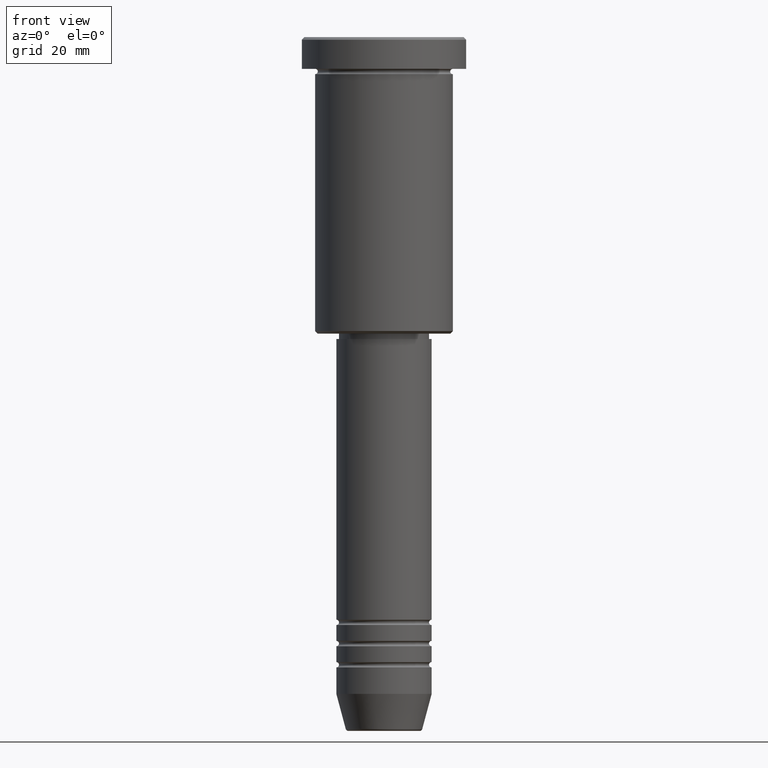
[diagram: clean part render]
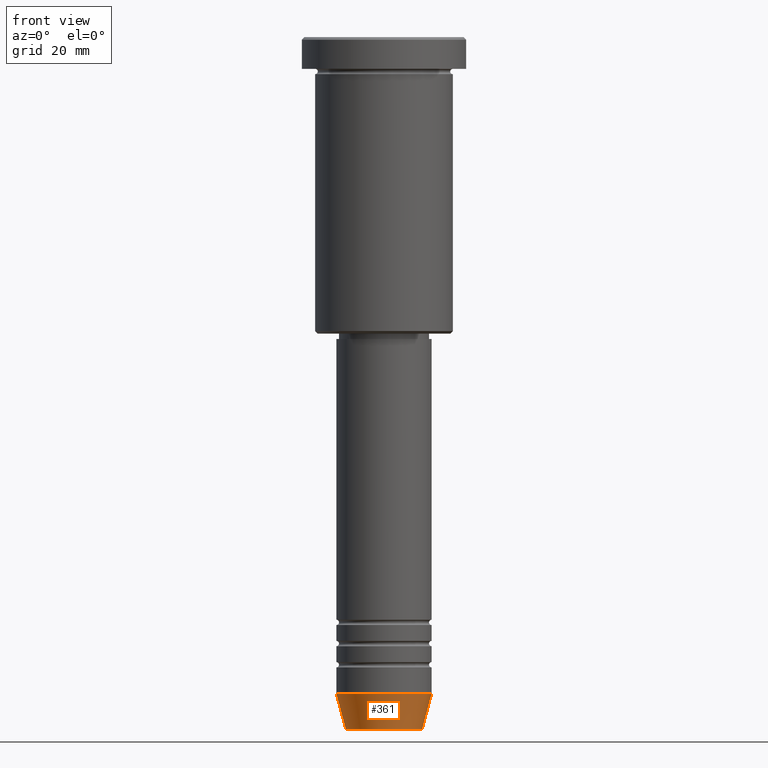
[diagram: same view with one face highlighted and labeled with its STEP entity id]
A machine part, front view. The second image highlights one B-rep face of the part: STEP entity #361.
In plain terms, the highlighted conical surface has half-angle 15 deg.
Its self-contained STEP definition (entity closure, byte-faithful):
#38 = DIRECTION ( 'NONE',  ( 1.000000000000000000, 0.000000000000000000, 0.000000000000000000 ) ) ;
#45 = ORIENTED_EDGE ( 'NONE', *, *, #631, .T. ) ;
#65 = AXIS2_PLACEMENT_3D ( 'NONE', #1141, #585, #38 ) ;
#81 = DIRECTION ( 'NONE',  ( 1.000000000000000000, 0.000000000000000000, 0.000000000000000000 ) ) ;
#208 = VERTEX_POINT ( 'NONE', #1138 ) ;
#360 = DIRECTION ( 'NONE',  ( 0.2588190451025213501, 0.000000000000000000, 0.9659258262890680902 ) ) ;
#361 = ADVANCED_FACE ( 'NONE', ( #544 ), #881, .T. ) ;
#419 = CARTESIAN_POINT ( 'NONE',  ( -9.000000000000000000, 1.102182119232617714E-15, -124.0000000000000000 ) ) ;
#432 = EDGE_CURVE ( 'NONE', #467, #208, #434, .T. ) ;
#434 = LINE ( 'NONE', #419, #899 ) ;
#457 = VECTOR ( 'NONE', #360, 1000.000000000000000 ) ;
#467 = VERTEX_POINT ( 'NONE', #616 ) ;
#522 = EDGE_CURVE ( 'NONE', #467, #632, #907, .T. ) ;
#524 = LINE ( 'NONE', #896, #457 ) ;
#530 = CARTESIAN_POINT ( 'NONE',  ( 0.000000000000000000, 0.000000000000000000, -130.6294095225512706 ) ) ;
#544 = FACE_OUTER_BOUND ( 'NONE', #1134, .T. ) ;
#554 = ORIENTED_EDGE ( 'NONE', *, *, #522, .T. ) ;
#561 = CARTESIAN_POINT ( 'NONE',  ( 9.000000000000000000, 0.000000000000000000, -124.0000000000000000 ) ) ;
#585 = DIRECTION ( 'NONE',  ( -0.000000000000000000, -0.000000000000000000, 1.000000000000000000 ) ) ;
#616 = CARTESIAN_POINT ( 'NONE',  ( -7.223655072137189492, 9.934123627281765110E-16, -130.6294095225512706 ) ) ;
#631 = EDGE_CURVE ( 'NONE', #632, #634, #524, .T. ) ;
#632 = VERTEX_POINT ( 'NONE', #1168 ) ;
#634 = VERTEX_POINT ( 'NONE', #561 ) ;
#756 = AXIS2_PLACEMENT_3D ( 'NONE', #910, #905, #913 ) ;
#803 = CIRCLE ( 'NONE', #65, 9.000000000000000000 ) ;
#881 = CONICAL_SURFACE ( 'NONE', #756, 9.000000000000000000, 0.2617993877991500740 ) ;
#896 = CARTESIAN_POINT ( 'NONE',  ( 9.000000000000000000, 0.000000000000000000, -124.0000000000000000 ) ) ;
#899 = VECTOR ( 'NONE', #1078, 1000.000000000000000 ) ;
#905 = DIRECTION ( 'NONE',  ( -0.000000000000000000, -0.000000000000000000, 1.000000000000000000 ) ) ;
#907 = CIRCLE ( 'NONE', #1016, 7.223655072137188604 ) ;
#908 = DIRECTION ( 'NONE',  ( -0.000000000000000000, -0.000000000000000000, 1.000000000000000000 ) ) ;
#910 = CARTESIAN_POINT ( 'NONE',  ( 0.000000000000000000, 0.000000000000000000, -124.0000000000000000 ) ) ;
#913 = DIRECTION ( 'NONE',  ( 1.000000000000000000, 0.000000000000000000, 0.000000000000000000 ) ) ;
#1016 = AXIS2_PLACEMENT_3D ( 'NONE', #530, #908, #81 ) ;
#1030 = ORIENTED_EDGE ( 'NONE', *, *, #1102, .F. ) ;
#1078 = DIRECTION ( 'NONE',  ( -0.2588190451025213501, 3.169619151431772337E-17, 0.9659258262890680902 ) ) ;
#1102 = EDGE_CURVE ( 'NONE', #208, #634, #803, .T. ) ;
#1111 = ORIENTED_EDGE ( 'NONE', *, *, #432, .F. ) ;
#1134 = EDGE_LOOP ( 'NONE', ( #1111, #554, #45, #1030 ) ) ;
#1138 = CARTESIAN_POINT ( 'NONE',  ( -9.000000000000000000, 1.102182119232617714E-15, -124.0000000000000000 ) ) ;
#1141 = CARTESIAN_POINT ( 'NONE',  ( 0.000000000000000000, 0.000000000000000000, -124.0000000000000000 ) ) ;
#1168 = CARTESIAN_POINT ( 'NONE',  ( 7.223655072137188604, 0.000000000000000000, -130.6294095225512706 ) ) ;